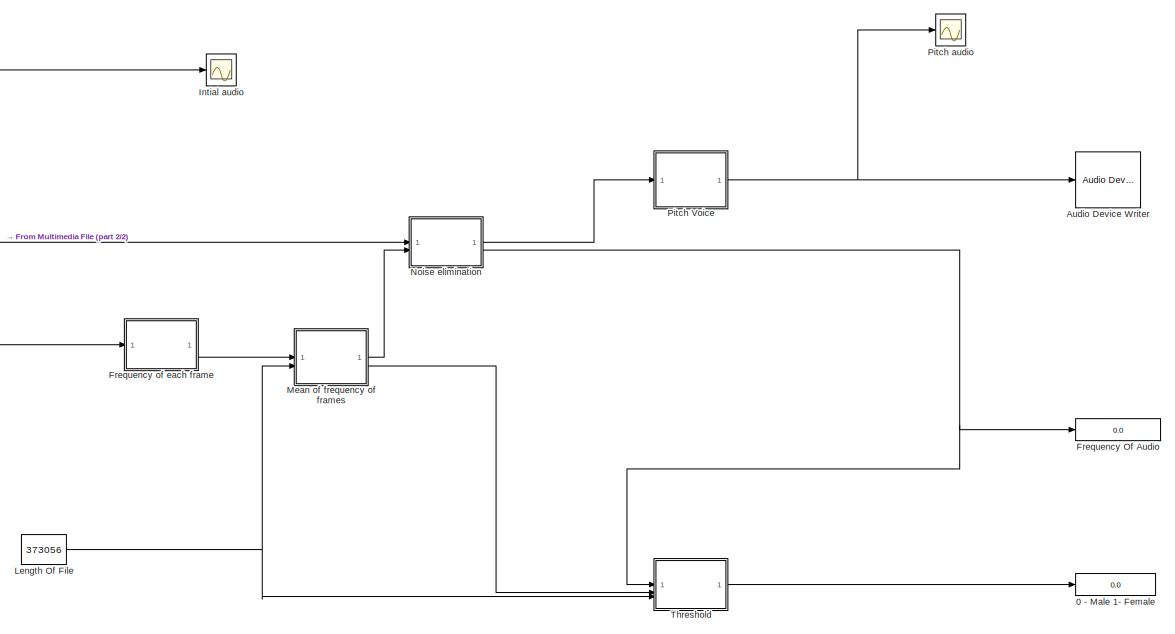
[diagram: root canvas - part 1/2, right side, full height]
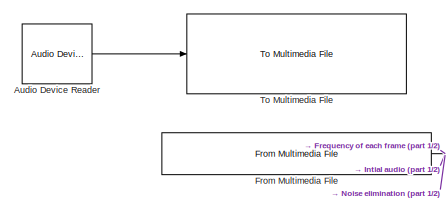
[diagram: root canvas - part 2/2, middle left region]
MODEL slx_00cce36c49eb
KIND model
CONFIG AbsTol = auto
CONFIG EnableMultiTasking = off
CONFIG FixedStep = auto
CONFIG MaxStep = auto
CONFIG MinStep = auto
CONFIG RelTol = 1e-3
CONFIG SampleTimeConstraint = Unconstrained
CONFIG SolverName = VariableStepAuto
CONFIG StartTime = 0.0
CONFIG StopTime = 10.0
BLOCK [Display] 0 - Male 1- Female
  Decimation = 1
BLOCK [Reference] Audio Device Reader  REF=audiosources/Audio Device
Reader
  SourceBlock = audiosources/Audio Device\nReader
  SourceType = Audio Device Reader
BLOCK [Reference] Audio Device Writer  REF=dspsnks4/Audio Device
Writer
  SourceBlock = dspsnks4/Audio Device\nWriter
  SourceType = Audio Device Writer
BLOCK [Display] Frequency Of Audio
  Decimation = 1
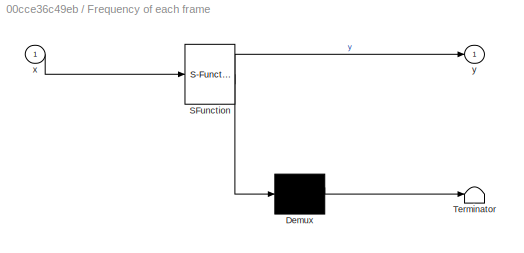
BLOCK [SubSystem] Frequency of each frame
  ErrorFcn = Stateflow.Translate.translate
  PermitHierarchicalResolution = ExplicitOnly
  SFBlockType = MATLAB Function
  TreatAsAtomicUnit = on
BLOCK [Demux] Frequency of each frame/ Demux 
  Outputs = 1
BLOCK [S-Function] Frequency of each frame/ SFunction 
  EnableBusSupport = on
  FunctionName = sf_sfun
  PortCounts = [1 2]
  SFcnIsStateOwnerBlock = off
  SFunctionDeploymentMode = off
  Tag = Stateflow S-Function 2
BLOCK [Terminator] Frequency of each frame/ Terminator 
BLOCK [Inport] Frequency of each frame/x
BLOCK [Outport] Frequency of each frame/y
BLOCK [Reference] From Multimedia File  REF=dspvision/From Multimedia File
  SourceBlock = dspvision/From Multimedia File
  SourceType = From Multimedia File
BLOCK [Scope] Intial audio
  DefaultConfigurationName = spbscopes.TimeScopeBlockCfg
  Floating = off
  NumInputPorts = 1
  ScopeSpecificationString = spbscopes.TimeScopeBlockCfg('CurrentConfiguration', extmgr.ConfigurationSet(extmgr.Configuration('Core','General UI',true),extmgr.Configuration('Core','Source UI',true),extmgr.Configuration('Sources','WiredSimulink',true),extmgr.Configuration('Visuals','Time Domain',true,'DisplayPropertyDefaults',struct('MinYLimReal','-1.24385','MaxYLimReal','1.24928','YLabelReal','Amplitude','MinYLimMag','0.00000...<+1396ch>
  UserDataPersistent = on
BLOCK [Constant] Length Of File 
  Value = 373056
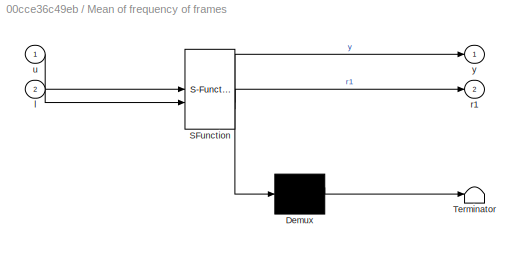
BLOCK [SubSystem] Mean of frequency of frames
  ErrorFcn = Stateflow.Translate.translate
  PermitHierarchicalResolution = ExplicitOnly
  SFBlockType = MATLAB Function
  TreatAsAtomicUnit = on
BLOCK [Demux] Mean of frequency of frames/ Demux 
  Outputs = 1
BLOCK [S-Function] Mean of frequency of frames/ SFunction 
  EnableBusSupport = on
  FunctionName = sf_sfun
  PortCounts = [2 3]
  SFcnIsStateOwnerBlock = off
  SFunctionDeploymentMode = off
  Tag = Stateflow S-Function 3
BLOCK [Terminator] Mean of frequency of frames/ Terminator 
BLOCK [Inport] Mean of frequency of frames/l
  Port = 2
BLOCK [Outport] Mean of frequency of frames/r1
  Port = 2
BLOCK [Inport] Mean of frequency of frames/u
BLOCK [Outport] Mean of frequency of frames/y
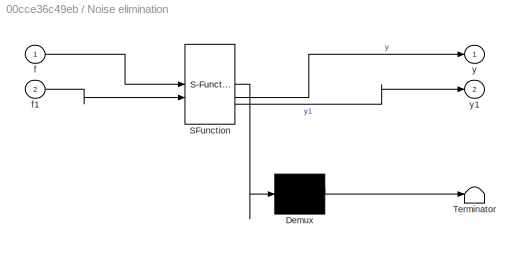
BLOCK [SubSystem] Noise elimination
  ErrorFcn = Stateflow.Translate.translate
  LibrarySourceBlock = simulink/User-Defined\nFunctions/MATLAB Function
  PermitHierarchicalResolution = ExplicitOnly
  SFBlockType = MATLAB Function
  TreatAsAtomicUnit = on
BLOCK [Demux] Noise elimination/ Demux 
  Outputs = 1
BLOCK [S-Function] Noise elimination/ SFunction 
  EnableBusSupport = on
  FunctionName = sf_sfun
  PortCounts = [2 3]
  SFcnIsStateOwnerBlock = off
  SFunctionDeploymentMode = off
  Tag = Stateflow S-Function 4
BLOCK [Terminator] Noise elimination/ Terminator 
BLOCK [Inport] Noise elimination/f
BLOCK [Inport] Noise elimination/f1
  Port = 2
BLOCK [Outport] Noise elimination/y
BLOCK [Outport] Noise elimination/y1
  Port = 2
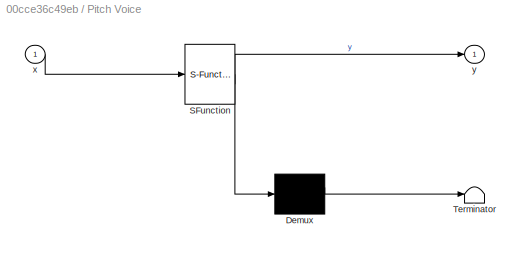
BLOCK [SubSystem] Pitch Voice
  ErrorFcn = Stateflow.Translate.translate
  LibrarySourceBlock = simulink/User-Defined\nFunctions/MATLAB Function
  PermitHierarchicalResolution = ExplicitOnly
  SFBlockType = MATLAB Function
  TreatAsAtomicUnit = on
BLOCK [Demux] Pitch Voice/ Demux 
  Outputs = 1
BLOCK [S-Function] Pitch Voice/ SFunction 
  EnableBusSupport = on
  FunctionName = sf_sfun
  PortCounts = [1 2]
  SFcnIsStateOwnerBlock = off
  SFunctionDeploymentMode = off
  Tag = Stateflow S-Function 6
BLOCK [Terminator] Pitch Voice/ Terminator 
BLOCK [Inport] Pitch Voice/x
BLOCK [Outport] Pitch Voice/y
BLOCK [Scope] Pitch audio
  DefaultConfigurationName = spbscopes.TimeScopeBlockCfg
  Floating = off
  NumInputPorts = 1
  ScopeSpecificationString = spbscopes.TimeScopeBlockCfg('CurrentConfiguration', extmgr.ConfigurationSet(extmgr.Configuration('Core','General UI',true),extmgr.Configuration('Core','Source UI',true),extmgr.Configuration('Sources','WiredSimulink',true,'DataLoggingVariableName','ScopeData1'),extmgr.Configuration('Visuals','Time Domain',true,'DisplayPropertyDefaults',struct('MinYLimReal','-1.23967','MaxYLimReal','1.18038','YLabel...<+1423ch>
  UserDataPersistent = on
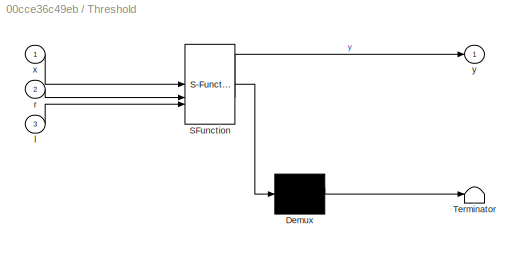
BLOCK [SubSystem] Threshold
  ErrorFcn = Stateflow.Translate.translate
  PermitHierarchicalResolution = ExplicitOnly
  SFBlockType = MATLAB Function
  TreatAsAtomicUnit = on
BLOCK [Demux] Threshold/ Demux 
  Outputs = 1
BLOCK [S-Function] Threshold/ SFunction 
  EnableBusSupport = on
  FunctionName = sf_sfun
  PortCounts = [3 2]
  SFcnIsStateOwnerBlock = off
  SFunctionDeploymentMode = off
  Tag = Stateflow S-Function 1
BLOCK [Terminator] Threshold/ Terminator 
BLOCK [Inport] Threshold/l
  Port = 3
BLOCK [Inport] Threshold/r
  Port = 2
BLOCK [Inport] Threshold/x
BLOCK [Outport] Threshold/y
BLOCK [Reference] To Multimedia File  REF=dspvision/To Multimedia File
  LibrarySourceBlock = dspsnks4/To Multimedia File
  SourceBlock = dspvision/To Multimedia File
  SourceType = To Multimedia File
LINE Audio Device Reader:1 -> To Multimedia File:1
LINE Frequency of each frame:1 -> Mean of frequency of frames:1
NET From Multimedia File:1 -> Frequency of each frame:1, Intial audio:1, Noise elimination:1
NET Length Of File :1 -> Mean of frequency of frames:2, Threshold:3
LINE Mean of frequency of frames:1 -> Noise elimination:2
LINE Mean of frequency of frames:2 -> Threshold:2
LINE Noise elimination:1 -> Pitch Voice:1
NET Noise elimination:2 -> Frequency Of Audio:1, Threshold:1
NET Pitch Voice:1 -> Audio Device Writer:1, Pitch audio:1
LINE Threshold:1 -> 0 - Male 1- Female:1
note: NET lines group one-source signal fan-out (src -> all destinations, sorted); 1:1 wires keep LINE
CHART Threshold states=1 transitions=1
  STATE_LABEL 'eML_blk_kernel()'
  STATE_LABEL 'SCRIPT:\nfunction y = fcn(x,r,l)\ny=5;\nif r>l/3500\n    if x>165\n        y=1;\n    else\n        y=0;\n    end\nend\nend\n'
CHART Frequency of each frame states=1 transitions=1
  STATE_LABEL 'eML_blk_kernel()'
  STATE_LABEL "SCRIPT:\nfunction y = fcn(x)\nFs=44100; %frecventa de esantionare\n%foloseste functia butter si filter\ncoder.extrinsic('butter');\ncoder.extrinsic('filter');\n%filtru Butterworth\n[b0,a0]=butter(2,325/(Fs/2));\n%valoarea absoluta a semnalului de intrare\nxin = abs(x);\n%filtrul Butterworth aplicat pe semanlul de intrare\nxin=filter(b0,a0,xin);\nxin = xin-mean(xin);\nx2=zeros(length(xin),1);\nx2(1:length(x)-1)=...<+116ch>"
CHART Mean of frequency 
of frames states=1 transitions=1
  STATE_LABEL 'eML_blk_kernel()'
  STATE_LABEL 'SCRIPT:\nfunction [ y,r1] = fcn(u,l)\npersistent i\npersistent r\n%daca valorile lui i si r sunt goale,le intializeaza cu 0\nif isempty(i)\n        i = 0;\nend\nif isempty(r)\n        r = 0;\nend\nj=l/3500;\ni= (u/j)+i;\nr=r+1;\nr1=r;\ny = i;\n'
CHART Noise elimination states=1 transitions=1
  STATE_LABEL 'eML_blk_kernel()'
  STATE_LABEL "SCRIPT:\nfunction [y, y1] = fcn(f, f1)\nfs=44100;\n% frecventa de taiere\nfc = 2500;  \n% ordinul filtrului\norder = 4;\n%filtrul Butterworth\n[b, a] = butter(order, fc/(fs/2), 'low');  \ny = filter(b, a, f);\ny1=f1;"
CHART Pitch Voice states=1 transitions=1
  STATE_LABEL 'eML_blk_kernel()'
  STATE_LABEL "SCRIPT:\nfunction y =  f(x)\n% Mărește frecvența fundamentală pentru a face vocea pitigaiata\npitchFactor = 0.6;\n% Timpul pentru fiecare esantion\nt_original = (0:length(x)-1)';\n% Un nou vector de timp pentru esantionare\nt_resampled = (0:1/pitchFactor:(length(x)-1)/pitchFactor)';\ny = interp1(t_original, x, t_resampled, 'spline', 0);\nend"
CHART  states=0 transitions=0
CHART  states=0 transitions=0
CHART  states=0 transitions=0
CHART  states=0 transitions=0
CHART  states=0 transitions=0
